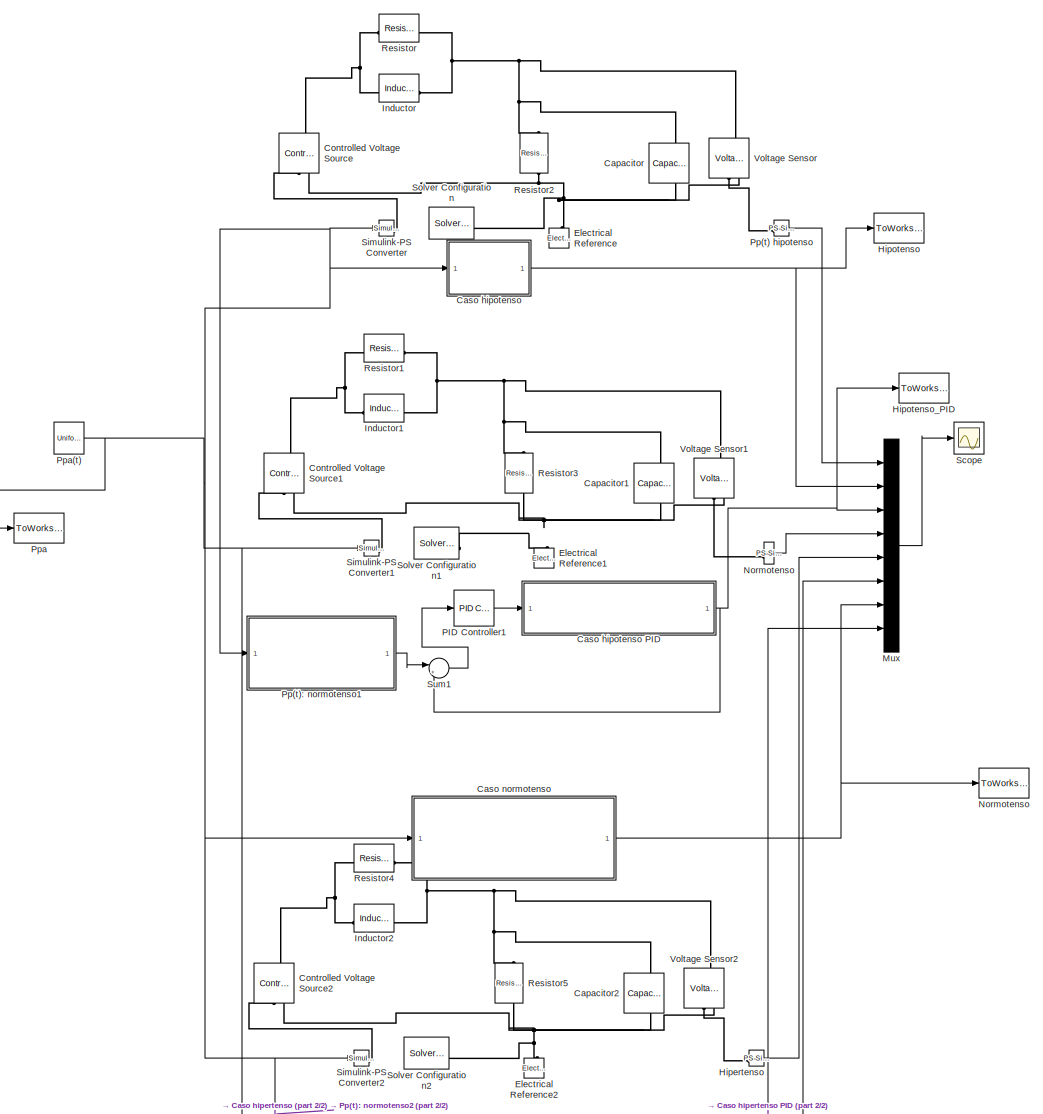
[diagram: root canvas - part 1/2, most of the canvas]
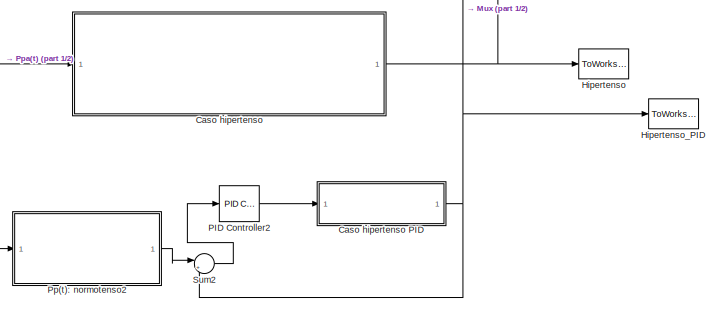
[diagram: root canvas - part 2/2, bottom center region]
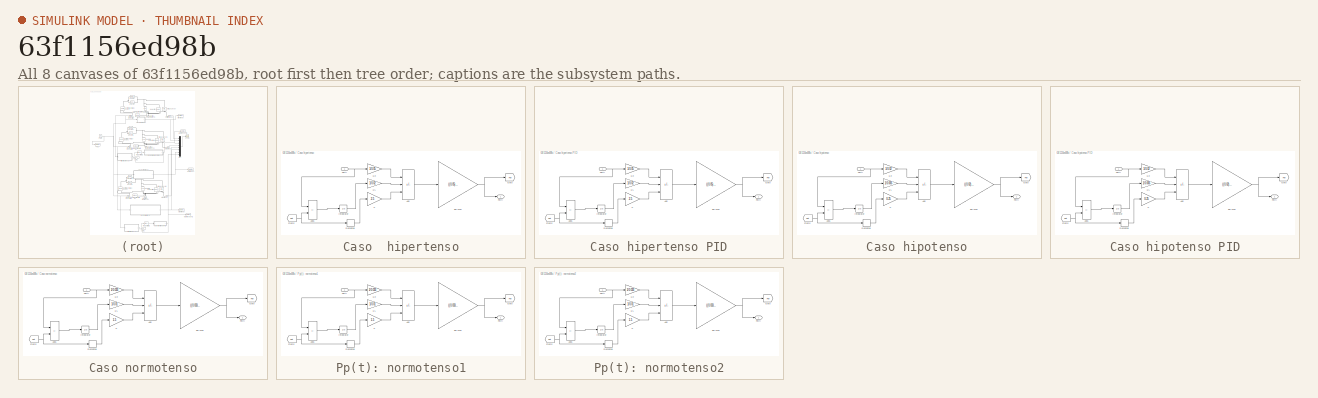
[diagram: thumbnail index - all 8 canvases of the model, root first then tree order]
MODEL slx_63f1156ed98b
KIND model
CONFIG AbsTol = auto
CONFIG EnableMultiTasking = off
CONFIG FixedStep = auto
CONFIG MaxStep = 1E-3
CONFIG MinStep = auto
CONFIG RelTol = 1e-3
CONFIG SampleTimeConstraint = Unconstrained
CONFIG SolverName = ode23t
CONFIG StartTime = 0.0
CONFIG StopTime = 10.0
BLOCK [Reference]  Hipertenso  REF=nesl_utility/PS-Simulink
Converter
  SourceBlock = nesl_utility/PS-Simulink\nConverter
  SourceType = PS-Simulink\nConverter
BLOCK [Reference]  Normotenso  REF=nesl_utility/PS-Simulink
Converter
  SourceBlock = nesl_utility/PS-Simulink\nConverter
  SourceType = PS-Simulink\nConverter
BLOCK [Reference] Capacitor  REF=fl_lib/Electrical/Electrical Elements/Capacitor
  NameLocation = left
  SourceBlock = fl_lib/Electrical/Electrical Elements/Capacitor
  SourceType = Capacitor
BLOCK [Reference] Capacitor1  REF=fl_lib/Electrical/Electrical Elements/Capacitor
  NameLocation = left
  SourceBlock = fl_lib/Electrical/Electrical Elements/Capacitor
  SourceType = Capacitor
BLOCK [Reference] Capacitor2  REF=fl_lib/Electrical/Electrical Elements/Capacitor
  NameLocation = left
  SourceBlock = fl_lib/Electrical/Electrical Elements/Capacitor
  SourceType = Capacitor
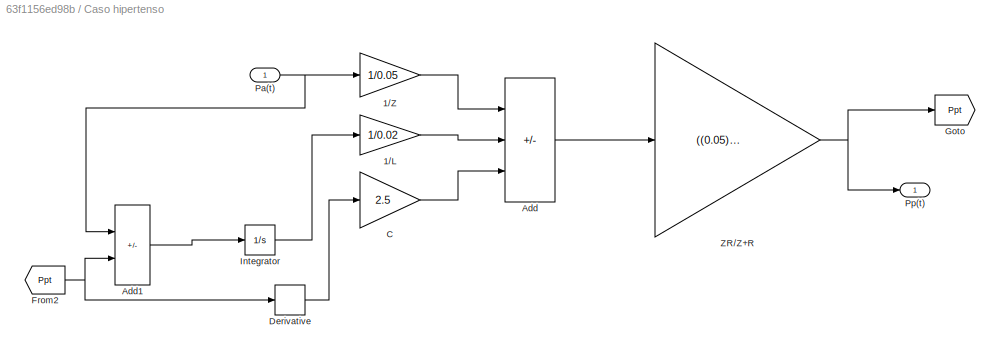
BLOCK [SubSystem] Caso  hipertenso
BLOCK [Gain] Caso  hipertenso/1//L
  Gain = 1/0.02
BLOCK [Gain] Caso  hipertenso/1//Z
  Gain = 1/0.05
BLOCK [Sum] Caso  hipertenso/Add
  IconShape = rectangular
  Inputs = ++-
BLOCK [Sum] Caso  hipertenso/Add1
  IconShape = rectangular
  Inputs = +-
BLOCK [Gain] Caso  hipertenso/C
  Gain = 2.5
BLOCK [Derivative] Caso  hipertenso/Derivative
BLOCK [From] Caso  hipertenso/From2
  GotoTag = Ppt
BLOCK [Goto] Caso  hipertenso/Goto
  GotoTag = Ppt
BLOCK [Integrator] Caso  hipertenso/Integrator
BLOCK [Inport] Caso  hipertenso/Pa(t)
BLOCK [Outport] Caso  hipertenso/Pp(t)
BLOCK [Gain] Caso  hipertenso/ZR//Z+R
  Gain = ((0.05)*(1.4))/((0.05)+(1.4))
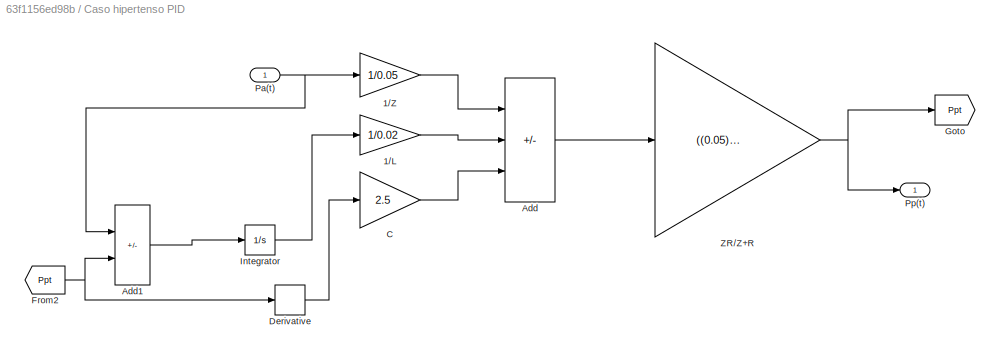
BLOCK [SubSystem] Caso hipertenso PID
BLOCK [Gain] Caso hipertenso PID/1//L
  Gain = 1/0.02
BLOCK [Gain] Caso hipertenso PID/1//Z
  Gain = 1/0.05
BLOCK [Sum] Caso hipertenso PID/Add
  IconShape = rectangular
  Inputs = ++-
BLOCK [Sum] Caso hipertenso PID/Add1
  IconShape = rectangular
  Inputs = +-
BLOCK [Gain] Caso hipertenso PID/C
  Gain = 2.5
BLOCK [Derivative] Caso hipertenso PID/Derivative
BLOCK [From] Caso hipertenso PID/From2
  GotoTag = Ppt
BLOCK [Goto] Caso hipertenso PID/Goto
  GotoTag = Ppt
BLOCK [Integrator] Caso hipertenso PID/Integrator
BLOCK [Inport] Caso hipertenso PID/Pa(t)
BLOCK [Outport] Caso hipertenso PID/Pp(t)
BLOCK [Gain] Caso hipertenso PID/ZR//Z+R
  Gain = ((0.05)*(1.4))/((0.05)+(1.4))
BLOCK [SubSystem] Caso hipotenso
BLOCK [SubSystem] Caso hipotenso PID
BLOCK [Gain] Caso hipotenso PID/1//L
  Gain = 1/0.005
BLOCK [Gain] Caso hipotenso PID/1//Z
  Gain = 1/0.02
BLOCK [Sum] Caso hipotenso PID/Add
  IconShape = rectangular
  Inputs = ++-
BLOCK [Sum] Caso hipotenso PID/Add1
  IconShape = rectangular
  Inputs = +-
BLOCK [Gain] Caso hipotenso PID/C
  Gain = 0.25
BLOCK [Derivative] Caso hipotenso PID/Derivative
BLOCK [From] Caso hipotenso PID/From2
  GotoTag = Ppt
BLOCK [Goto] Caso hipotenso PID/Goto
  GotoTag = Ppt
BLOCK [Integrator] Caso hipotenso PID/Integrator
BLOCK [Inport] Caso hipotenso PID/Pa(t)
BLOCK [Outport] Caso hipotenso PID/Pp(t)
BLOCK [Gain] Caso hipotenso PID/ZR//Z+R
  Gain = ((0.02)*(0.6))/((0.02)+(0.6))
BLOCK [Gain] Caso hipotenso/1//L
  Gain = 1/0.005
BLOCK [Gain] Caso hipotenso/1//Z
  Gain = 1/0.02
BLOCK [Sum] Caso hipotenso/Add
  IconShape = rectangular
  Inputs = ++-
BLOCK [Sum] Caso hipotenso/Add1
  IconShape = rectangular
  Inputs = +-
BLOCK [Gain] Caso hipotenso/C
  Gain = 0.25
BLOCK [Derivative] Caso hipotenso/Derivative
BLOCK [From] Caso hipotenso/From2
  GotoTag = Ppt
BLOCK [Goto] Caso hipotenso/Goto
  GotoTag = Ppt
BLOCK [Integrator] Caso hipotenso/Integrator
BLOCK [Inport] Caso hipotenso/Pa(t)
BLOCK [Outport] Caso hipotenso/Pp(t)
BLOCK [Gain] Caso hipotenso/ZR//Z+R
  Gain = ((0.02)*(0.6))/((0.02)+(0.6))
BLOCK [SubSystem] Caso normotenso
BLOCK [Gain] Caso normotenso/1//L
  Gain = 1/0.01
BLOCK [Gain] Caso normotenso/1//Z
  Gain = 1/0.033
BLOCK [Sum] Caso normotenso/Add
  IconShape = rectangular
  Inputs = ++-
BLOCK [Sum] Caso normotenso/Add1
  IconShape = rectangular
  Inputs = +-
BLOCK [Gain] Caso normotenso/C
  Gain = 1.5
BLOCK [Derivative] Caso normotenso/Derivative
BLOCK [From] Caso normotenso/From2
  GotoTag = Ppt
BLOCK [Goto] Caso normotenso/Goto
  GotoTag = Ppt
BLOCK [Integrator] Caso normotenso/Integrator
BLOCK [Inport] Caso normotenso/Pa(t)
BLOCK [Outport] Caso normotenso/Pp(t)
BLOCK [Gain] Caso normotenso/ZR//Z+R
  Gain = ((0.033)*(0.95))/((0.033)+(0.95))
BLOCK [Reference] Controlled Voltage Source  REF=fl_lib/Electrical/Electrical Sources/Controlled Voltage
Source
  NameLocation = right
  SourceBlock = fl_lib/Electrical/Electrical Sources/Controlled Voltage\nSource
  SourceType = Controlled Voltage\nSource
BLOCK [Reference] Controlled Voltage Source1  REF=fl_lib/Electrical/Electrical Sources/Controlled Voltage
Source
  NameLocation = right
  SourceBlock = fl_lib/Electrical/Electrical Sources/Controlled Voltage\nSource
  SourceType = Controlled Voltage\nSource
BLOCK [Reference] Controlled Voltage Source2  REF=fl_lib/Electrical/Electrical Sources/Controlled Voltage
Source
  NameLocation = right
  SourceBlock = fl_lib/Electrical/Electrical Sources/Controlled Voltage\nSource
  SourceType = Controlled Voltage\nSource
BLOCK [Reference] Electrical Reference  REF=fl_lib/Electrical/Electrical Elements/Electrical Reference
  NameLocation = right
  SourceBlock = fl_lib/Electrical/Electrical Elements/Electrical Reference
  SourceType = Electrical Reference
BLOCK [Reference] Electrical Reference1  REF=fl_lib/Electrical/Electrical Elements/Electrical Reference
  NameLocation = right
  SourceBlock = fl_lib/Electrical/Electrical Elements/Electrical Reference
  SourceType = Electrical Reference
BLOCK [Reference] Electrical Reference2  REF=fl_lib/Electrical/Electrical Elements/Electrical Reference
  NameLocation = right
  SourceBlock = fl_lib/Electrical/Electrical Elements/Electrical Reference
  SourceType = Electrical Reference
BLOCK [ToWorkspace] Hipertenso
  FixptAsFi = on
  MaxDataPoints = inf
  SampleTime = -1
  VariableName = Pp2
BLOCK [ToWorkspace] Hipertenso_PID
  FixptAsFi = on
  MaxDataPoints = inf
  SampleTime = -1
  VariableName = Pp4
BLOCK [ToWorkspace] Hipotenso
  FixptAsFi = on
  MaxDataPoints = inf
  SampleTime = -1
  VariableName = Pp1
BLOCK [ToWorkspace] Hipotenso_PID
  FixptAsFi = on
  MaxDataPoints = inf
  SampleTime = -1
  VariableName = Pp3
BLOCK [Reference] Inductor  REF=fl_lib/Electrical/Electrical Elements/Inductor
  SourceBlock = fl_lib/Electrical/Electrical Elements/Inductor
  SourceType = Inductor
BLOCK [Reference] Inductor1  REF=fl_lib/Electrical/Electrical Elements/Inductor
  SourceBlock = fl_lib/Electrical/Electrical Elements/Inductor
  SourceType = Inductor
BLOCK [Reference] Inductor2  REF=fl_lib/Electrical/Electrical Elements/Inductor
  SourceBlock = fl_lib/Electrical/Electrical Elements/Inductor
  SourceType = Inductor
BLOCK [Mux] Mux
  DisplayOption = bar
  Inputs = 8
BLOCK [ToWorkspace] Normotenso
  FixptAsFi = on
  MaxDataPoints = inf
  SampleTime = -1
  VariableName = Pp0
BLOCK [Reference] PID Controller1  REF=slpidlib/PID Controller
  LibrarySourceBlock = simulink/Continuous/PID Controller
  SourceBlock = slpidlib/PID Controller
  SourceType = PID 1dof
BLOCK [Reference] PID Controller2  REF=slpidlib/PID Controller
  LibrarySourceBlock = simulink/Continuous/PID Controller
  SourceBlock = slpidlib/PID Controller
  SourceType = PID 1dof
BLOCK [Reference] Pp(t) hipotenso  REF=nesl_utility/PS-Simulink
Converter
  SourceBlock = nesl_utility/PS-Simulink\nConverter
  SourceType = PS-Simulink\nConverter
BLOCK [SubSystem] Pp(t): normotenso1
BLOCK [Gain] Pp(t): normotenso1/1//L
  Gain = 1/0.01
BLOCK [Gain] Pp(t): normotenso1/1//Z
  Gain = 1/0.033
BLOCK [Sum] Pp(t): normotenso1/Add
  IconShape = rectangular
  Inputs = ++-
BLOCK [Sum] Pp(t): normotenso1/Add1
  IconShape = rectangular
  Inputs = +-
BLOCK [Gain] Pp(t): normotenso1/C
  Gain = 1.5
BLOCK [Derivative] Pp(t): normotenso1/Derivative
BLOCK [From] Pp(t): normotenso1/From2
  GotoTag = Ppt
BLOCK [Goto] Pp(t): normotenso1/Goto
  GotoTag = Ppt
BLOCK [Integrator] Pp(t): normotenso1/Integrator
BLOCK [Inport] Pp(t): normotenso1/Pa(t)
BLOCK [Outport] Pp(t): normotenso1/Pp(t)
BLOCK [Gain] Pp(t): normotenso1/ZR//Z+R
  Gain = ((0.033)*(0.95))/((0.033)+(0.95))
BLOCK [SubSystem] Pp(t): normotenso2
BLOCK [Gain] Pp(t): normotenso2/1//L
  Gain = 1/0.01
BLOCK [Gain] Pp(t): normotenso2/1//Z
  Gain = 1/0.033
BLOCK [Sum] Pp(t): normotenso2/Add
  IconShape = rectangular
  Inputs = ++-
BLOCK [Sum] Pp(t): normotenso2/Add1
  IconShape = rectangular
  Inputs = +-
BLOCK [Gain] Pp(t): normotenso2/C
  Gain = 1.5
BLOCK [Derivative] Pp(t): normotenso2/Derivative
BLOCK [From] Pp(t): normotenso2/From2
  GotoTag = Ppt
BLOCK [Goto] Pp(t): normotenso2/Goto
  GotoTag = Ppt
BLOCK [Integrator] Pp(t): normotenso2/Integrator
BLOCK [Inport] Pp(t): normotenso2/Pa(t)
BLOCK [Outport] Pp(t): normotenso2/Pp(t)
BLOCK [Gain] Pp(t): normotenso2/ZR//Z+R
  Gain = ((0.033)*(0.95))/((0.033)+(0.95))
BLOCK [ToWorkspace] Ppa
  FixptAsFi = on
  MaxDataPoints = inf
  SampleTime = -1
  VariableName = Ppa
BLOCK [UniformRandomNumber] Ppa(t)
  Minimum = -0.2
  SampleTime = 0.5
  Seed = 106
BLOCK [Reference] Resistor  REF=fl_lib/Electrical/Electrical Elements/Resistor
  SourceBlock = fl_lib/Electrical/Electrical Elements/Resistor
  SourceType = Resistor
BLOCK [Reference] Resistor1  REF=fl_lib/Electrical/Electrical Elements/Resistor
  SourceBlock = fl_lib/Electrical/Electrical Elements/Resistor
  SourceType = Resistor
BLOCK [Reference] Resistor2  REF=fl_lib/Electrical/Electrical Elements/Resistor
  NameLocation = left
  SourceBlock = fl_lib/Electrical/Electrical Elements/Resistor
  SourceType = Resistor
BLOCK [Reference] Resistor3  REF=fl_lib/Electrical/Electrical Elements/Resistor
  NameLocation = left
  SourceBlock = fl_lib/Electrical/Electrical Elements/Resistor
  SourceType = Resistor
BLOCK [Reference] Resistor4  REF=fl_lib/Electrical/Electrical Elements/Resistor
  SourceBlock = fl_lib/Electrical/Electrical Elements/Resistor
  SourceType = Resistor
BLOCK [Reference] Resistor5  REF=fl_lib/Electrical/Electrical Elements/Resistor
  NameLocation = left
  SourceBlock = fl_lib/Electrical/Electrical Elements/Resistor
  SourceType = Resistor
BLOCK [Scope] Scope
  Floating = off
  NumInputPorts = 1
  ScopeSpecificationString = Simulink.scopes.TimeScopeBlockCfg('CurrentConfiguration', extmgr.ConfigurationSet(extmgr.Configuration('Core','General UI',true,'FigureColor',[1 1 1]),extmgr.Configuration('Core','Source UI',true),extmgr.Configuration('Sources','WiredSimulink',true),extmgr.Configuration('Visuals','Time Domain',true,'SerializedDisplays',{struct('MinYLimReal','-0.32879','MaxYLimReal','1.25633','YLabelReal','','MinYL...<+2450ch>
BLOCK [Reference] Simulink-PS Converter  REF=nesl_utility/Simulink-PS
Converter
  SourceBlock = nesl_utility/Simulink-PS\nConverter
  SourceType = Simulink-PS\nConverter
BLOCK [Reference] Simulink-PS Converter1  REF=nesl_utility/Simulink-PS
Converter
  SourceBlock = nesl_utility/Simulink-PS\nConverter
  SourceType = Simulink-PS\nConverter
BLOCK [Reference] Simulink-PS Converter2  REF=nesl_utility/Simulink-PS
Converter
  SourceBlock = nesl_utility/Simulink-PS\nConverter
  SourceType = Simulink-PS\nConverter
BLOCK [Reference] Solver Configuration  REF=nesl_utility/Solver
Configuration
  SourceBlock = nesl_utility/Solver\nConfiguration
  SourceType = Solver\nConfiguration
BLOCK [Reference] Solver Configuration1  REF=nesl_utility/Solver
Configuration
  SourceBlock = nesl_utility/Solver\nConfiguration
  SourceType = Solver\nConfiguration
BLOCK [Reference] Solver Configuration2  REF=nesl_utility/Solver
Configuration
  SourceBlock = nesl_utility/Solver\nConfiguration
  SourceType = Solver\nConfiguration
BLOCK [Sum] Sum1
  Inputs = |+-
BLOCK [Sum] Sum2
  Inputs = |+-
BLOCK [Reference] Voltage Sensor  REF=fl_lib/Electrical/Electrical Sensors/Voltage Sensor
  NameLocation = right
  SourceBlock = fl_lib/Electrical/Electrical Sensors/Voltage Sensor
  SourceType = Voltage Sensor
BLOCK [Reference] Voltage Sensor1  REF=fl_lib/Electrical/Electrical Sensors/Voltage Sensor
  NameLocation = right
  SourceBlock = fl_lib/Electrical/Electrical Sensors/Voltage Sensor
  SourceType = Voltage Sensor
BLOCK [Reference] Voltage Sensor2  REF=fl_lib/Electrical/Electrical Sensors/Voltage Sensor
  NameLocation = right
  SourceBlock = fl_lib/Electrical/Electrical Sensors/Voltage Sensor
  SourceType = Voltage Sensor
LINE  Hipertenso:1 -> Mux:5
LINE  Normotenso:1 -> Mux:4
LINE Caso  hipertenso/1//L:1 -> Caso  hipertenso/Add:2
LINE Caso  hipertenso/1//Z:1 -> Caso  hipertenso/Add:1
LINE Caso  hipertenso/Add1:1 -> Caso  hipertenso/Integrator:1
LINE Caso  hipertenso/Add:1 -> Caso  hipertenso/ZR//Z+R:1
LINE Caso  hipertenso/C:1 -> Caso  hipertenso/Add:3
LINE Caso  hipertenso/Derivative:1 -> Caso  hipertenso/C:1
NET Caso  hipertenso/From2:1 -> Caso  hipertenso/Add1:2, Caso  hipertenso/Derivative:1
LINE Caso  hipertenso/Integrator:1 -> Caso  hipertenso/1//L:1
NET Caso  hipertenso/Pa(t):1 -> Caso  hipertenso/1//Z:1, Caso  hipertenso/Add1:1
NET Caso  hipertenso/ZR//Z+R:1 -> Caso  hipertenso/Goto:1, Caso  hipertenso/Pp(t):1
NET Caso  hipertenso:1 -> Hipertenso:1, Mux:6
LINE Caso hipertenso PID/1//L:1 -> Caso hipertenso PID/Add:2
LINE Caso hipertenso PID/1//Z:1 -> Caso hipertenso PID/Add:1
LINE Caso hipertenso PID/Add1:1 -> Caso hipertenso PID/Integrator:1
LINE Caso hipertenso PID/Add:1 -> Caso hipertenso PID/ZR//Z+R:1
LINE Caso hipertenso PID/C:1 -> Caso hipertenso PID/Add:3
LINE Caso hipertenso PID/Derivative:1 -> Caso hipertenso PID/C:1
NET Caso hipertenso PID/From2:1 -> Caso hipertenso PID/Add1:2, Caso hipertenso PID/Derivative:1
LINE Caso hipertenso PID/Integrator:1 -> Caso hipertenso PID/1//L:1
NET Caso hipertenso PID/Pa(t):1 -> Caso hipertenso PID/1//Z:1, Caso hipertenso PID/Add1:1
NET Caso hipertenso PID/ZR//Z+R:1 -> Caso hipertenso PID/Goto:1, Caso hipertenso PID/Pp(t):1
NET Caso hipertenso PID:1 -> Hipertenso_PID:1, Mux:8, Sum2:2
LINE Caso hipotenso PID/1//L:1 -> Caso hipotenso PID/Add:2
LINE Caso hipotenso PID/1//Z:1 -> Caso hipotenso PID/Add:1
LINE Caso hipotenso PID/Add1:1 -> Caso hipotenso PID/Integrator:1
LINE Caso hipotenso PID/Add:1 -> Caso hipotenso PID/ZR//Z+R:1
LINE Caso hipotenso PID/C:1 -> Caso hipotenso PID/Add:3
LINE Caso hipotenso PID/Derivative:1 -> Caso hipotenso PID/C:1
NET Caso hipotenso PID/From2:1 -> Caso hipotenso PID/Add1:2, Caso hipotenso PID/Derivative:1
LINE Caso hipotenso PID/Integrator:1 -> Caso hipotenso PID/1//L:1
NET Caso hipotenso PID/Pa(t):1 -> Caso hipotenso PID/1//Z:1, Caso hipotenso PID/Add1:1
NET Caso hipotenso PID/ZR//Z+R:1 -> Caso hipotenso PID/Goto:1, Caso hipotenso PID/Pp(t):1
NET Caso hipotenso PID:1 -> Hipotenso_PID:1, Mux:3, Sum1:2
LINE Caso hipotenso/1//L:1 -> Caso hipotenso/Add:2
LINE Caso hipotenso/1//Z:1 -> Caso hipotenso/Add:1
LINE Caso hipotenso/Add1:1 -> Caso hipotenso/Integrator:1
LINE Caso hipotenso/Add:1 -> Caso hipotenso/ZR//Z+R:1
LINE Caso hipotenso/C:1 -> Caso hipotenso/Add:3
LINE Caso hipotenso/Derivative:1 -> Caso hipotenso/C:1
NET Caso hipotenso/From2:1 -> Caso hipotenso/Add1:2, Caso hipotenso/Derivative:1
LINE Caso hipotenso/Integrator:1 -> Caso hipotenso/1//L:1
NET Caso hipotenso/Pa(t):1 -> Caso hipotenso/1//Z:1, Caso hipotenso/Add1:1
NET Caso hipotenso/ZR//Z+R:1 -> Caso hipotenso/Goto:1, Caso hipotenso/Pp(t):1
NET Caso hipotenso:1 -> Hipotenso:1, Mux:2
LINE Caso normotenso/1//L:1 -> Caso normotenso/Add:2
LINE Caso normotenso/1//Z:1 -> Caso normotenso/Add:1
LINE Caso normotenso/Add1:1 -> Caso normotenso/Integrator:1
LINE Caso normotenso/Add:1 -> Caso normotenso/ZR//Z+R:1
LINE Caso normotenso/C:1 -> Caso normotenso/Add:3
LINE Caso normotenso/Derivative:1 -> Caso normotenso/C:1
NET Caso normotenso/From2:1 -> Caso normotenso/Add1:2, Caso normotenso/Derivative:1
LINE Caso normotenso/Integrator:1 -> Caso normotenso/1//L:1
NET Caso normotenso/Pa(t):1 -> Caso normotenso/1//Z:1, Caso normotenso/Add1:1
NET Caso normotenso/ZR//Z+R:1 -> Caso normotenso/Goto:1, Caso normotenso/Pp(t):1
NET Caso normotenso:1 -> Mux:7, Normotenso:1
LINE Mux:1 -> Scope:1
LINE PID Controller1:1 -> Caso hipotenso PID:1
LINE PID Controller2:1 -> Caso hipertenso PID:1
LINE Pp(t) hipotenso:1 -> Mux:1
LINE Pp(t): normotenso1/1//L:1 -> Pp(t): normotenso1/Add:2
LINE Pp(t): normotenso1/1//Z:1 -> Pp(t): normotenso1/Add:1
LINE Pp(t): normotenso1/Add1:1 -> Pp(t): normotenso1/Integrator:1
LINE Pp(t): normotenso1/Add:1 -> Pp(t): normotenso1/ZR//Z+R:1
LINE Pp(t): normotenso1/C:1 -> Pp(t): normotenso1/Add:3
LINE Pp(t): normotenso1/Derivative:1 -> Pp(t): normotenso1/C:1
NET Pp(t): normotenso1/From2:1 -> Pp(t): normotenso1/Add1:2, Pp(t): normotenso1/Derivative:1
LINE Pp(t): normotenso1/Integrator:1 -> Pp(t): normotenso1/1//L:1
NET Pp(t): normotenso1/Pa(t):1 -> Pp(t): normotenso1/1//Z:1, Pp(t): normotenso1/Add1:1
NET Pp(t): normotenso1/ZR//Z+R:1 -> Pp(t): normotenso1/Goto:1, Pp(t): normotenso1/Pp(t):1
LINE Pp(t): normotenso1:1 -> Sum1:1
LINE Pp(t): normotenso2/1//L:1 -> Pp(t): normotenso2/Add:2
LINE Pp(t): normotenso2/1//Z:1 -> Pp(t): normotenso2/Add:1
LINE Pp(t): normotenso2/Add1:1 -> Pp(t): normotenso2/Integrator:1
LINE Pp(t): normotenso2/Add:1 -> Pp(t): normotenso2/ZR//Z+R:1
LINE Pp(t): normotenso2/C:1 -> Pp(t): normotenso2/Add:3
LINE Pp(t): normotenso2/Derivative:1 -> Pp(t): normotenso2/C:1
NET Pp(t): normotenso2/From2:1 -> Pp(t): normotenso2/Add1:2, Pp(t): normotenso2/Derivative:1
LINE Pp(t): normotenso2/Integrator:1 -> Pp(t): normotenso2/1//L:1
NET Pp(t): normotenso2/Pa(t):1 -> Pp(t): normotenso2/1//Z:1, Pp(t): normotenso2/Add1:1
NET Pp(t): normotenso2/ZR//Z+R:1 -> Pp(t): normotenso2/Goto:1, Pp(t): normotenso2/Pp(t):1
LINE Pp(t): normotenso2:1 -> Sum2:1
NET Ppa(t):1 -> Caso  hipertenso:1, Caso hipotenso:1, Caso normotenso:1, Pp(t): normotenso1:1, Pp(t): normotenso2:1, Ppa:1, Simulink-PS Converter1:1, Simulink-PS Converter2:1, Simulink-PS Converter:1
LINE Sum1:1 -> PID Controller1:1
LINE Sum2:1 -> PID Controller2:1
PLINE  Hipertenso:LConn1 -- Voltage Sensor2:RConn1
PLINE  Normotenso:LConn1 -- Voltage Sensor1:RConn1
PNET net1: Capacitor1:LConn1 -- Inductor1:RConn1 -- Resistor1:RConn1 -- Resistor3:LConn1 -- Voltage Sensor1:LConn1
PNET net2: Capacitor1:RConn1 -- Controlled Voltage Source1:RConn2 -- Electrical Reference1:LConn1 -- Resistor3:RConn1 -- Solver Configuration1:RConn1 -- Voltage Sensor1:RConn2
PNET net3: Capacitor2:LConn1 -- Inductor2:RConn1 -- Resistor4:RConn1 -- Resistor5:LConn1 -- Voltage Sensor2:LConn1
PNET net4: Capacitor2:RConn1 -- Controlled Voltage Source2:RConn2 -- Electrical Reference2:LConn1 -- Resistor5:RConn1 -- Solver Configuration2:RConn1 -- Voltage Sensor2:RConn2
PNET net5: Capacitor:LConn1 -- Inductor:RConn1 -- Resistor2:LConn1 -- Resistor:RConn1 -- Voltage Sensor:LConn1
PNET net6: Capacitor:RConn1 -- Controlled Voltage Source:RConn2 -- Electrical Reference:LConn1 -- Resistor2:RConn1 -- Solver Configuration:RConn1 -- Voltage Sensor:RConn2
PNET net7: Controlled Voltage Source1:LConn1 -- Inductor1:LConn1 -- Resistor1:LConn1
PLINE Controlled Voltage Source1:RConn1 -- Simulink-PS Converter1:RConn1
PNET net8: Controlled Voltage Source2:LConn1 -- Inductor2:LConn1 -- Resistor4:LConn1
PLINE Controlled Voltage Source2:RConn1 -- Simulink-PS Converter2:RConn1
PNET net9: Controlled Voltage Source:LConn1 -- Inductor:LConn1 -- Resistor:LConn1
PLINE Controlled Voltage Source:RConn1 -- Simulink-PS Converter:RConn1
PLINE Pp(t) hipotenso:LConn1 -- Voltage Sensor:RConn1
note: NET lines group one-source signal fan-out (src -> all destinations, sorted); 1:1 wires keep LINE; PNET lines group multi-terminal physical nets as a canonical sorted terminal list (undirected conserving connections); 2-terminal nets keep the pairwise PLINE form
